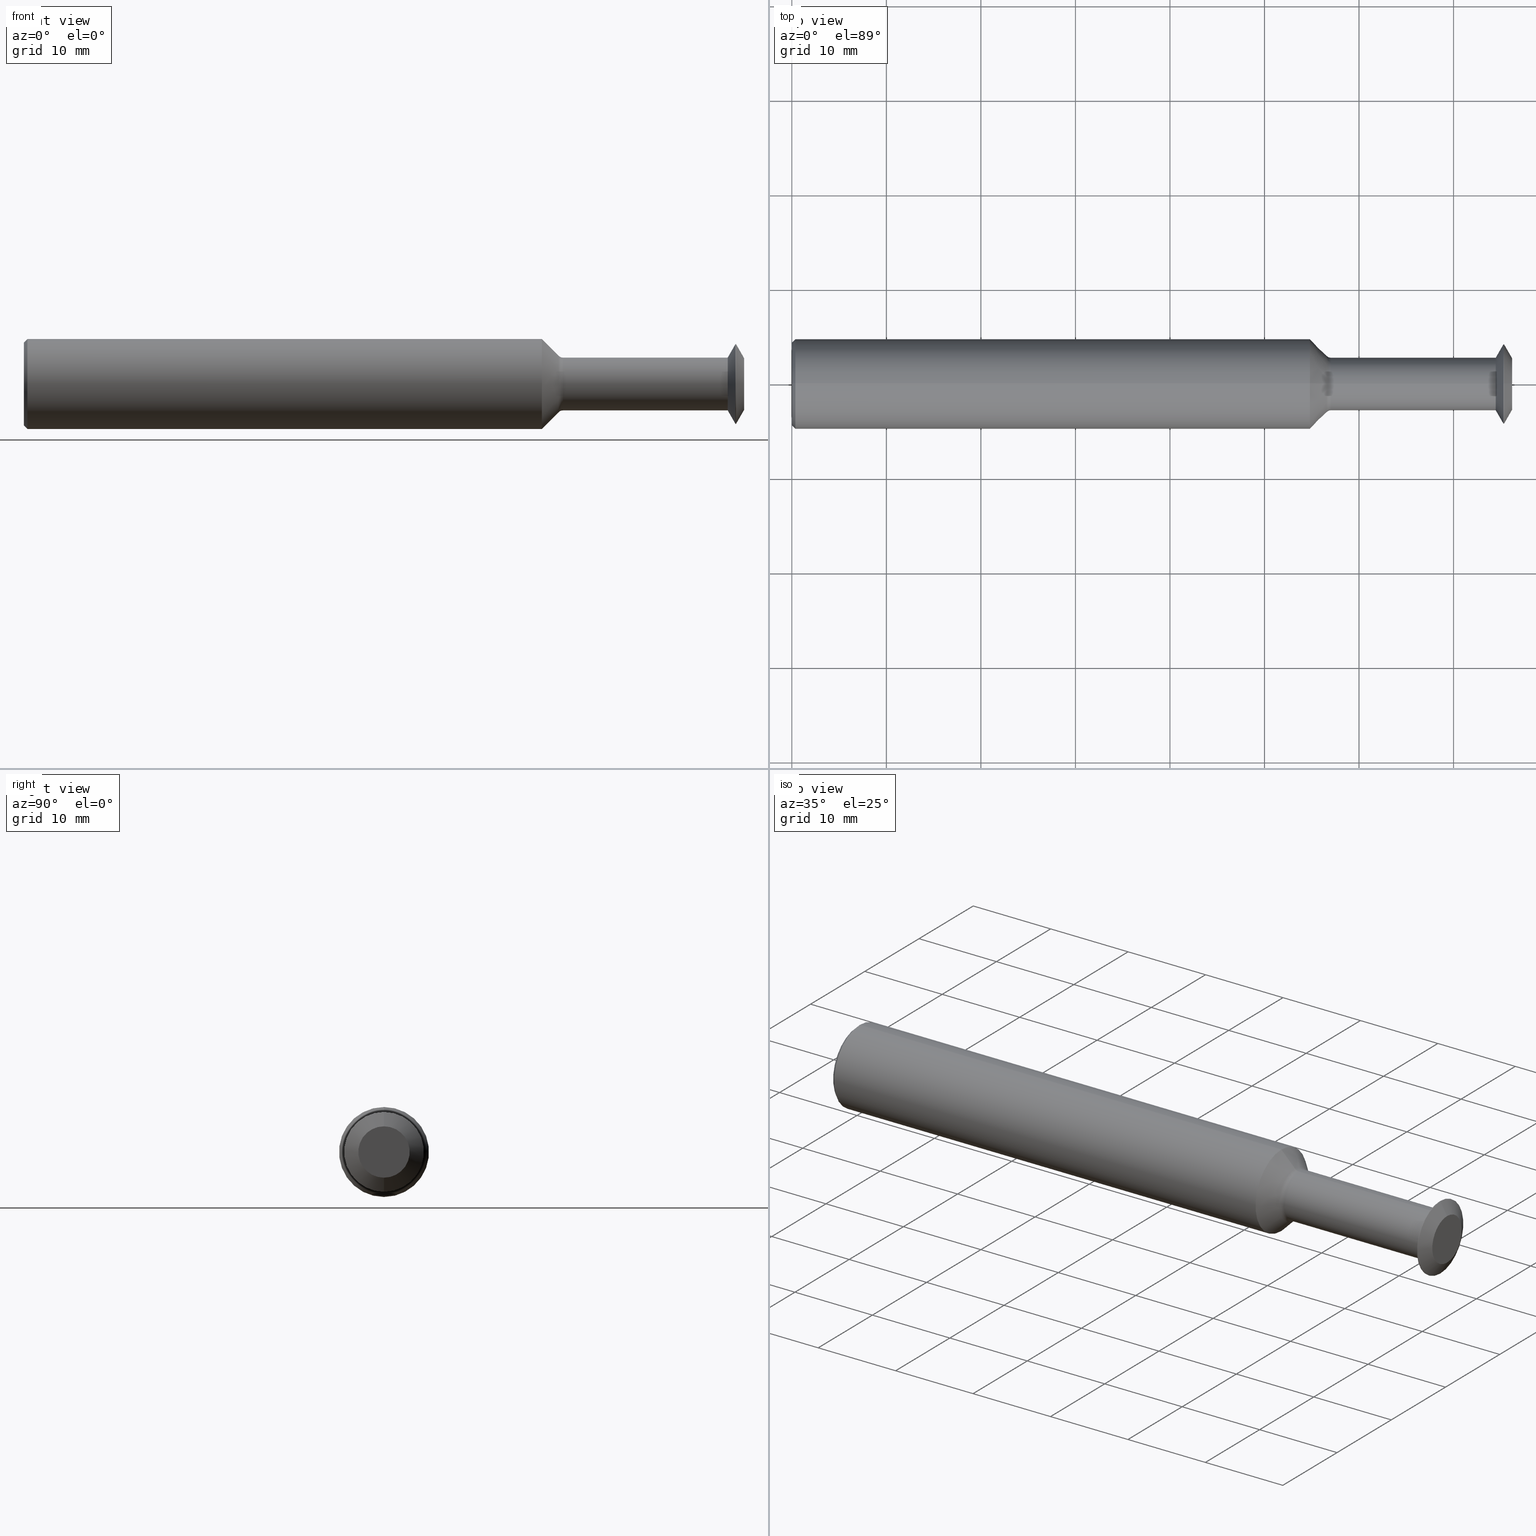
[diagram: canonical four-view strip — front | top / right | iso, engineering-drawing reading convention]
A machine part, canonical four-view strip (front | top / right | iso — engineering-drawing reading convention). The complete STEP part file that produces these views, byte-faithful:
ISO-10303-21;
HEADER;
FILE_DESCRIPTION (( 'STEP AP214' ),
    '1' );
FILE_NAME ('SPTM332.STEP',
    '2019-04-23T20:27:19',
    ( '' ),
    ( '' ),
    'SwSTEP 2.0',
    'SolidWorks 2018',
    '' );
FILE_SCHEMA (( 'AUTOMOTIVE_DESIGN' ));
ENDSEC;

DATA;
#1 = FACE_OUTER_BOUND ( 'NONE', #67, .T. ) ;
#2 = ORIENTED_EDGE ( 'NONE', *, *, #364, .F. ) ;
#3 = DIRECTION ( 'NONE',  ( 0.0000000000000000000, 0.0000000000000000000, 1.000000000000000000 ) ) ;
#4 = AXIS2_PLACEMENT_3D ( 'NONE', #200, #419, #3 ) ;
#5 = DIRECTION ( 'NONE',  ( 0.0000000000000000000, 0.0000000000000000000, 1.000000000000000000 ) ) ;
#6 = CARTESIAN_POINT ( 'NONE',  ( 3.000000000000000444, 0.0000000000000000000, 0.0000000000000000000 ) ) ;
#7 = PLANE ( 'NONE',  #227 ) ;
#8 = EDGE_CURVE ( 'NONE', #501, #144, #277, .T. ) ;
#9 = CIRCLE ( 'NONE', #284, 0.1173223304703358144 ) ;
#10 = ORIENTED_EDGE ( 'NONE', *, *, #130, .F. ) ;
#11 = ORIENTED_EDGE ( 'NONE', *, *, #330, .F. ) ;
#12 = LINE ( 'NONE', #387, #16 ) ;
#13 = ORIENTED_EDGE ( 'NONE', *, *, #108, .T. ) ;
#14 = UNCERTAINTY_MEASURE_WITH_UNIT (LENGTH_MEASURE( 1.000000000000000082E-05 ), #131, 'distance_accuracy_value', 'NONE');
#15 = CARTESIAN_POINT ( 'NONE',  ( 0.01499999999999953280, 0.0000000000000000000, 0.1873499999999999888 ) ) ;
#16 = VECTOR ( 'NONE', #339, 39.37007874015748143 ) ;
#17 = ORIENTED_EDGE ( 'NONE', *, *, #489, .T. ) ;
#18 = CARTESIAN_POINT ( 'NONE',  ( 0.0000000000000000000, 2.110678758330468070E-17, 0.1723500000000004195 ) ) ;
#19 = AXIS2_PLACEMENT_3D ( 'NONE', #308, #458, #301 ) ;
#20 = CARTESIAN_POINT ( 'NONE',  ( 0.0000000000000000000, 2.032913686584599974E-17, -0.1659999999999994813 ) ) ;
#21 = DIRECTION ( 'NONE',  ( 0.0000000000000000000, 0.0000000000000000000, 1.000000000000000000 ) ) ;
#22 = ORIENTED_EDGE ( 'NONE', *, *, #357, .F. ) ;
#23 = DIRECTION ( 'NONE',  ( -1.000000000000000000, -0.0000000000000000000, -0.0000000000000000000 ) ) ;
#24 = CIRCLE ( 'NONE', #211, 0.1659999999999994813 ) ;
#25 = ADVANCED_FACE ( 'NONE', ( #27 ), #196, .T. ) ;
#26 = DIRECTION ( 'NONE',  ( -1.000000000000000000, -0.0000000000000000000, -0.0000000000000000000 ) ) ;
#27 = FACE_OUTER_BOUND ( 'NONE', #369, .T. ) ;
#28 = CARTESIAN_POINT ( 'NONE',  ( 0.0000000000000000000, 0.0000000000000000000, 0.0000000000000000000 ) ) ;
#29 = UNCERTAINTY_MEASURE_WITH_UNIT (LENGTH_MEASURE( 1.000000000000000082E-05 ), #298, 'distance_accuracy_value', 'NONE');
#30 = ORIENTED_EDGE ( 'NONE', *, *, #489, .F. ) ;
#31 = DIRECTION ( 'NONE',  ( -1.000000000000000000, -0.0000000000000000000, -0.0000000000000000000 ) ) ;
#32 = FACE_OUTER_BOUND ( 'NONE', #381, .T. ) ;
#33 = CARTESIAN_POINT ( 'NONE',  ( 2.931505539846447128, 0.0000000000000000000, -0.1099999999999994732 ) ) ;
#34 = ORIENTED_EDGE ( 'NONE', *, *, #473, .F. ) ;
#35 = ORIENTED_EDGE ( 'NONE', *, *, #50, .T. ) ;
#36 = CYLINDRICAL_SURFACE ( 'NONE', #366, 0.1873499999999999888 ) ;
#37 = ORIENTED_EDGE ( 'NONE', *, *, #364, .T. ) ;
#38 = VECTOR ( 'NONE', #261, 39.37007874015748143 ) ;
#39 = EDGE_CURVE ( 'NONE', #354, #191, #420, .T. ) ;
#40 = ORIENTED_EDGE ( 'NONE', *, *, #462, .T. ) ;
#41 = TOROIDAL_SURFACE ( 'NONE', #19, 0.1349999999999994815, 0.02500000000000000486 ) ;
#42 = DIRECTION ( 'NONE',  ( 0.0000000000000000000, 0.0000000000000000000, 1.000000000000000000 ) ) ;
#43 = SURFACE_STYLE_FILL_AREA ( #244 ) ;
#44 = AXIS2_PLACEMENT_3D ( 'NONE', #228, #222, #418 ) ;
#45 = ORIENTED_EDGE ( 'NONE', *, *, #183, .F. ) ;
#46 = VERTEX_POINT ( 'NONE', #334 ) ;
#47 = EDGE_CURVE ( 'NONE', #426, #139, #82, .T. ) ;
#48 = DIRECTION ( 'NONE',  ( 0.0000000000000000000, 0.0000000000000000000, -1.000000000000000000 ) ) ;
#49 = PRODUCT_DEFINITION_SHAPE ( 'NONE', 'NONE',  #427 ) ;
#50 = EDGE_CURVE ( 'NONE', #201, #321, #278, .T. ) ;
#51 = VECTOR ( 'NONE', #23, 39.37007874015748143 ) ;
#52 = CIRCLE ( 'NONE', #343, 0.1873499999999999888 ) ;
#53 = ORIENTED_EDGE ( 'NONE', *, *, #108, .F. ) ;
#54 = AXIS2_PLACEMENT_3D ( 'NONE', #423, #109, #353 ) ;
#55 = CARTESIAN_POINT ( 'NONE',  ( 3.000000000000000444, 0.0000000000000000000, 0.0000000000000000000 ) ) ;
#56 = CIRCLE ( 'NONE', #448, 0.1069999999999994428 ) ;
#57 = EDGE_CURVE ( 'NONE', #321, #156, #102, .T. ) ;
#58 = VERTEX_POINT ( 'NONE', #439 ) ;
#59 = DIRECTION ( 'NONE',  ( 0.0000000000000000000, 0.0000000000000000000, -1.000000000000000000 ) ) ;
#60 = DIRECTION ( 'NONE',  ( -0.7071067811865483499, 0.0000000000000000000, 0.7071067811865465735 ) ) ;
#61 =( LENGTH_UNIT ( ) NAMED_UNIT ( * ) SI_UNIT ( $, .METRE. ) );
#62 = CARTESIAN_POINT ( 'NONE',  ( 0.0000000000000000000, 0.0000000000000000000, 0.0000000000000000000 ) ) ;
#63 = UNCERTAINTY_MEASURE_WITH_UNIT (LENGTH_MEASURE( 1.000000000000000082E-05 ), #280, 'distance_accuracy_value', 'NONE');
#64 = PRODUCT_DEFINITION_CONTEXT ( 'detailed design', #362, 'design' ) ;
#65 = DIRECTION ( 'NONE',  ( -0.0000000000000000000, 0.0000000000000000000, 1.000000000000000000 ) ) ;
#66 = CARTESIAN_POINT ( 'NONE',  ( 3.000000000000000444, 1.310372075087661178E-17, -0.1069999999999994428 ) ) ;
#67 = EDGE_LOOP ( 'NONE', ( #181, #13, #17, #166 ) ) ;
#68 = PRESENTATION_LAYER_ASSIGNMENT (  '', '', ( #77 ) ) ;
#69 = CONICAL_SURFACE ( 'NONE', #374, 0.1173223304703358144, 0.7853981633974470578 ) ;
#70 = DIRECTION ( 'NONE',  ( 0.0000000000000000000, 0.0000000000000000000, -1.000000000000000000 ) ) ;
#71 = ORIENTED_EDGE ( 'NONE', *, *, #50, .F. ) ;
#72 = CARTESIAN_POINT ( 'NONE',  ( 2.966141972616872735, 2.032913686584599974E-17, -0.1659999999999994813 ) ) ;
#73 = EDGE_CURVE ( 'NONE', #428, #46, #442, .T. ) ;
#74 = SURFACE_SIDE_STYLE ('',( #43 ) ) ;
#75 = CIRCLE ( 'NONE', #203, 0.1069999999999994428 ) ;
#76 = EDGE_LOOP ( 'NONE', ( #250, #376, #348, #11 ) ) ;
#77 = STYLED_ITEM ( 'NONE', ( #487 ), #388 ) ;
#78 = DIRECTION ( 'NONE',  ( 0.0000000000000000000, 0.0000000000000000000, 1.000000000000000000 ) ) ;
#79 = CARTESIAN_POINT ( 'NONE',  ( 2.227569642146536300, 0.0000000000000000000, 0.1173223304703358144 ) ) ;
#80 = FACE_OUTER_BOUND ( 'NONE', #105, .T. ) ;
#81 = DIRECTION ( 'NONE',  ( 0.0000000000000000000, 0.0000000000000000000, 1.000000000000000000 ) ) ;
#82 = LINE ( 'NONE', #358, #494 ) ;
#83 = CARTESIAN_POINT ( 'NONE',  ( 0.0000000000000000000, 0.0000000000000000000, 0.0000000000000000000 ) ) ;
#84 = DIRECTION ( 'NONE',  ( -1.000000000000000000, -0.0000000000000000000, -0.0000000000000000000 ) ) ;
#85 = ORIENTED_EDGE ( 'NONE', *, *, #187, .T. ) ;
#86 = DIRECTION ( 'NONE',  ( 0.4977310399126169682, 0.0000000000000000000, -0.8673314314075702969 ) ) ;
#87 = FACE_OUTER_BOUND ( 'NONE', #76, .T. ) ;
#88 = EDGE_CURVE ( 'NONE', #58, #341, #75, .T. ) ;
#89 = ORIENTED_EDGE ( 'NONE', *, *, #8, .F. ) ;
#90 = ORIENTED_EDGE ( 'NONE', *, *, #91, .T. ) ;
#91 = EDGE_CURVE ( 'NONE', #428, #426, #318, .T. ) ;
#92 = CARTESIAN_POINT ( 'NONE',  ( 2.963641972616872788, 0.0000000000000000000, -0.1659999999999994813 ) ) ;
#93 = DIRECTION ( 'NONE',  ( 0.0000000000000000000, 0.0000000000000000000, 1.000000000000000000 ) ) ;
#94 = EDGE_LOOP ( 'NONE', ( #141, #90, #495, #460 ) ) ;
#95 = ORIENTED_EDGE ( 'NONE', *, *, #403, .T. ) ;
#96 = CARTESIAN_POINT ( 'NONE',  ( 2.227569642146536300, 0.0000000000000000000, 0.0000000000000000000 ) ) ;
#97 = MECHANICAL_DESIGN_GEOMETRIC_PRESENTATION_REPRESENTATION (  '', ( #408 ), #286 ) ;
#98 = CARTESIAN_POINT ( 'NONE',  ( 0.0000000000000000000, 0.0000000000000000000, 0.0000000000000000000 ) ) ;
#99 = LINE ( 'NONE', #189, #170 ) ;
#100 = CIRCLE ( 'NONE', #279, 0.1659999999999994813 ) ;
#101 = DIRECTION ( 'NONE',  ( -1.000000000000000000, -0.0000000000000000000, -0.0000000000000000000 ) ) ;
#102 = LINE ( 'NONE', #18, #38 ) ;
#103 = LINE ( 'NONE', #129, #125 ) ;
#104 = CARTESIAN_POINT ( 'NONE',  ( 2.966141972616872735, 0.0000000000000000000, 0.0000000000000000000 ) ) ;
#105 = EDGE_LOOP ( 'NONE', ( #390, #485, #251, #34 ) ) ;
#106 = SURFACE_STYLE_USAGE ( .BOTH. , #147 ) ;
#107 = DIRECTION ( 'NONE',  ( 0.0000000000000000000, 0.0000000000000000000, 1.000000000000000000 ) ) ;
#108 = EDGE_CURVE ( 'NONE', #428, #180, #112, .T. ) ;
#109 = DIRECTION ( 'NONE',  ( 1.000000000000000000, 0.0000000000000000000, 0.0000000000000000000 ) ) ;
#110 =( LENGTH_UNIT ( ) NAMED_UNIT ( * ) SI_UNIT ( $, .METRE. ) );
#111 = DIRECTION ( 'NONE',  ( 0.0000000000000000000, -1.000000000000000000, 0.0000000000000000000 ) ) ;
#112 = CIRCLE ( 'NONE', #248, 0.02500000000000000486 ) ;
#113 = DIRECTION ( 'NONE',  ( -1.000000000000000000, -0.0000000000000000000, -0.0000000000000000000 ) ) ;
#114 = ORIENTED_EDGE ( 'NONE', *, *, #39, .T. ) ;
#115 = DIRECTION ( 'NONE',  ( -0.4977310399126227969, 1.062174661273168978E-16, -0.8673314314075668552 ) ) ;
#116 = CARTESIAN_POINT ( 'NONE',  ( 2.245247311676199953, 0.0000000000000000000, 0.1349999999999994815 ) ) ;
#117 = EDGE_LOOP ( 'NONE', ( #363, #327, #475, #160 ) ) ;
#118 = LINE ( 'NONE', #338, #51 ) ;
#119 = DIRECTION ( 'NONE',  ( 0.4977310399126169682, 1.062174661273173415E-16, 0.8673314314075702969 ) ) ;
#120 = EDGE_CURVE ( 'NONE', #224, #501, #464, .T. ) ;
#121 = ORIENTED_EDGE ( 'NONE', *, *, #183, .T. ) ;
#122 = DIRECTION ( 'NONE',  ( -1.000000000000000000, -0.0000000000000000000, -0.0000000000000000000 ) ) ;
#123 = CARTESIAN_POINT ( 'NONE',  ( 2.966141972616872735, 0.0000000000000000000, 0.0000000000000000000 ) ) ;
#124 = ORIENTED_EDGE ( 'NONE', *, *, #39, .F. ) ;
#125 = VECTOR ( 'NONE', #380, 39.37007874015748143 ) ;
#126 = DIRECTION ( 'NONE',  ( -1.000000000000000000, -0.0000000000000000000, -0.0000000000000000000 ) ) ;
#127 = ORIENTED_EDGE ( 'NONE', *, *, #330, .T. ) ;
#128 = DIRECTION ( 'NONE',  ( 0.0000000000000000000, 0.0000000000000000000, 1.000000000000000000 ) ) ;
#129 = CARTESIAN_POINT ( 'NONE',  ( 0.0000000000000000000, 0.0000000000000000000, -0.1723500000000004195 ) ) ;
#130 = EDGE_CURVE ( 'NONE', #191, #144, #351, .T. ) ;
#131 =( CONVERSION_BASED_UNIT ( 'INCH', #197 ) LENGTH_UNIT ( ) NAMED_UNIT ( #481 ) );
#132 = VERTEX_POINT ( 'NONE', #172 ) ;
#133 = FACE_OUTER_BOUND ( 'NONE', #258, .T. ) ;
#134 = DIRECTION ( 'NONE',  ( 0.0000000000000000000, 0.0000000000000000000, 1.000000000000000000 ) ) ;
#135 = ORIENTED_EDGE ( 'NONE', *, *, #210, .T. ) ;
#136 = DIRECTION ( 'NONE',  ( -1.000000000000000000, -0.0000000000000000000, -0.0000000000000000000 ) ) ;
#137 = DIRECTION ( 'NONE',  ( -1.000000000000000000, -0.0000000000000000000, -0.0000000000000000000 ) ) ;
#138 = AXIS2_PLACEMENT_3D ( 'NONE', #83, #186, #480 ) ;
#139 = VERTEX_POINT ( 'NONE', #217 ) ;
#140 = EDGE_CURVE ( 'NONE', #321, #201, #449, .T. ) ;
#141 = ORIENTED_EDGE ( 'NONE', *, *, #73, .F. ) ;
#142 = DIRECTION ( 'NONE',  ( 0.0000000000000000000, 0.0000000000000000000, -1.000000000000000000 ) ) ;
#143 = CARTESIAN_POINT ( 'NONE',  ( 0.0000000000000000000, 0.0000000000000000000, 0.0000000000000000000 ) ) ;
#144 = VERTEX_POINT ( 'NONE', #410 ) ;
#145 = FILL_AREA_STYLE ('',( #285 ) ) ;
#146 = DIRECTION ( 'NONE',  ( -1.000000000000000000, -0.0000000000000000000, -0.0000000000000000000 ) ) ;
#147 = SURFACE_SIDE_STYLE ('',( #175 ) ) ;
#148 = DIRECTION ( 'NONE',  ( 0.0000000000000000000, 0.0000000000000000000, 1.000000000000000000 ) ) ;
#149 = ORIENTED_EDGE ( 'NONE', *, *, #462, .F. ) ;
#150 = DIRECTION ( 'NONE',  ( 0.0000000000000000000, 0.0000000000000000000, 1.000000000000000000 ) ) ;
#151 = EDGE_LOOP ( 'NONE', ( #209, #45, #431, #283 ) ) ;
#152 = ADVANCED_FACE ( 'NONE', ( #483 ), #407, .T. ) ;
#153 = CYLINDRICAL_SURFACE ( 'NONE', #4, 0.1659999999999994813 ) ;
#154 = EDGE_CURVE ( 'NONE', #341, #354, #474, .T. ) ;
#155 = ADVANCED_FACE ( 'NONE', ( #455 ), #467, .T. ) ;
#156 = VERTEX_POINT ( 'NONE', #15 ) ;
#157 = DIRECTION ( 'NONE',  ( 0.0000000000000000000, 0.0000000000000000000, 1.000000000000000000 ) ) ;
#158 = ADVANCED_FACE ( 'NONE', ( #356 ), #359, .F. ) ;
#159 = DIRECTION ( 'NONE',  ( 0.0000000000000000000, 0.0000000000000000000, -1.000000000000000000 ) ) ;
#160 = ORIENTED_EDGE ( 'NONE', *, *, #154, .F. ) ;
#161 = AXIS2_PLACEMENT_3D ( 'NONE', #276, #243, #266 ) ;
#162 = CARTESIAN_POINT ( 'NONE',  ( 2.245247311676199953, 0.0000000000000000000, 0.0000000000000000000 ) ) ;
#163 = CARTESIAN_POINT ( 'NONE',  ( 2.963641972616872788, 0.0000000000000000000, 0.1659999999999994813 ) ) ;
#164 = AXIS2_PLACEMENT_3D ( 'NONE', #441, #229, #42 ) ;
#165 = EDGE_LOOP ( 'NONE', ( #35, #396 ) ) ;
#166 = ORIENTED_EDGE ( 'NONE', *, *, #210, .F. ) ;
#167 = CARTESIAN_POINT ( 'NONE',  ( 2.245247311676199953, 1.653273178848920396E-17, -0.1349999999999994815 ) ) ;
#168 = ADVANCED_FACE ( 'NONE', ( #461 ), #496, .T. ) ;
#169 = EDGE_CURVE ( 'NONE', #241, #180, #377, .T. ) ;
#170 = VECTOR ( 'NONE', #193, 39.37007874015748143 ) ;
#171 =( NAMED_UNIT ( * ) PLANE_ANGLE_UNIT ( ) SI_UNIT ( $, .RADIAN. ) );
#172 = CARTESIAN_POINT ( 'NONE',  ( 0.01499999999999953280, 2.294375778202566330E-17, -0.1873499999999999888 ) ) ;
#173 = ADVANCED_FACE ( 'NONE', ( #443 ), #204, .T. ) ;
#174 =( LENGTH_UNIT ( ) NAMED_UNIT ( * ) SI_UNIT ( $, .METRE. ) );
#175 = SURFACE_STYLE_FILL_AREA ( #145 ) ;
#176 = AXIS2_PLACEMENT_3D ( 'NONE', #162, #322, #178 ) ;
#177 = AXIS2_PLACEMENT_3D ( 'NONE', #143, #421, #59 ) ;
#178 = DIRECTION ( 'NONE',  ( 0.0000000000000000000, 0.0000000000000000000, 1.000000000000000000 ) ) ;
#179 = COLOUR_RGB ( '',0.5019607843137254832, 0.5019607843137254832, 0.5019607843137254832 ) ;
#180 = VERTEX_POINT ( 'NONE', #294 ) ;
#181 = ORIENTED_EDGE ( 'NONE', *, *, #91, .F. ) ;
#182 = APPLICATION_PROTOCOL_DEFINITION ( 'draft international standard', 'automotive_design', 1998, #362 ) ;
#183 = EDGE_CURVE ( 'NONE', #501, #224, #416, .T. ) ;
#184 = CARTESIAN_POINT ( 'NONE',  ( 2.245247311676199953, 0.0000000000000000000, 0.0000000000000000000 ) ) ;
#185 = DIRECTION ( 'NONE',  ( -1.000000000000000000, -0.0000000000000000000, -0.0000000000000000000 ) ) ;
#186 = DIRECTION ( 'NONE',  ( -1.000000000000000000, -0.0000000000000000000, -0.0000000000000000000 ) ) ;
#187 = EDGE_CURVE ( 'NONE', #46, #139, #288, .T. ) ;
#188 = AXIS2_PLACEMENT_3D ( 'NONE', #405, #136, #128 ) ;
#189 = CARTESIAN_POINT ( 'NONE',  ( 0.0000000000000000000, 1.347111479062082155E-17, -0.1099999999999994732 ) ) ;
#190 = CARTESIAN_POINT ( 'NONE',  ( 0.0000000000000000000, 0.0000000000000000000, 0.0000000000000000000 ) ) ;
#191 = VERTEX_POINT ( 'NONE', #163 ) ;
#192 = DIRECTION ( 'NONE',  ( 0.0000000000000000000, 0.0000000000000000000, 1.000000000000000000 ) ) ;
#193 = DIRECTION ( 'NONE',  ( -1.000000000000000000, -0.0000000000000000000, -0.0000000000000000000 ) ) ;
#194 = ADVANCED_FACE ( 'NONE', ( #432 ), #478, .T. ) ;
#195 = DIRECTION ( 'NONE',  ( 0.0000000000000000000, 0.0000000000000000000, 1.000000000000000000 ) ) ;
#196 = CYLINDRICAL_SURFACE ( 'NONE', #188, 0.1873499999999999888 ) ;
#197 = LENGTH_MEASURE_WITH_UNIT ( LENGTH_MEASURE( 0.02539999999999999897 ), #110 );
#198 = CONICAL_SURFACE ( 'NONE', #177, 0.1723500000000004195, 0.7853981633974492782 ) ;
#199 = AXIS2_PLACEMENT_3D ( 'NONE', #345, #231, #70 ) ;
#200 = CARTESIAN_POINT ( 'NONE',  ( 0.0000000000000000000, 0.0000000000000000000, 0.0000000000000000000 ) ) ;
#201 = VERTEX_POINT ( 'NONE', #450 ) ;
#202 = DIRECTION ( 'NONE',  ( -1.000000000000000000, -0.0000000000000000000, -0.0000000000000000000 ) ) ;
#203 = AXIS2_PLACEMENT_3D ( 'NONE', #55, #296, #93 ) ;
#204 = CONICAL_SURFACE ( 'NONE', #452, 0.1659999999999994813, 1.049815545074583856 ) ;
#205 = ORIENTED_EDGE ( 'NONE', *, *, #247, .T. ) ;
#206 = SURFACE_STYLE_USAGE ( .BOTH. , #74 ) ;
#207 = ADVANCED_FACE ( 'NONE', ( #80 ), #281, .T. ) ;
#208 = LINE ( 'NONE', #268, #342 ) ;
#209 = ORIENTED_EDGE ( 'NONE', *, *, #239, .F. ) ;
#210 = EDGE_CURVE ( 'NONE', #426, #241, #491, .T. ) ;
#211 = AXIS2_PLACEMENT_3D ( 'NONE', #123, #299, #150 ) ;
#212 = AXIS2_PLACEMENT_3D ( 'NONE', #116, #111, #333 ) ;
#213 = ORIENTED_EDGE ( 'NONE', *, *, #218, .F. ) ;
#214 = LENGTH_MEASURE_WITH_UNIT ( LENGTH_MEASURE( 0.02539999999999999897 ), #61 );
#215 = AXIS2_PLACEMENT_3D ( 'NONE', #96, #137, #134 ) ;
#216 = MANIFOLD_SOLID_BREP ( '3E6DE0A6-F0A7-4dcf-9B00-E4F1BCAEEE2A-GAAFaceID9', #367 ) ;
#217 = CARTESIAN_POINT ( 'NONE',  ( 2.157541972616871639, 0.0000000000000000000, 0.1873499999999999888 ) ) ;
#218 = EDGE_CURVE ( 'NONE', #224, #241, #12, .T. ) ;
#219 = CARTESIAN_POINT ( 'NONE',  ( 2.963641972616872788, 0.0000000000000000000, 0.0000000000000000000 ) ) ;
#220 = VECTOR ( 'NONE', #349, 39.37007874015748143 ) ;
#221 = AXIS2_PLACEMENT_3D ( 'NONE', #386, #146, #313 ) ;
#222 = DIRECTION ( 'NONE',  ( 0.0000000000000000000, 0.0000000000000000000, 1.000000000000000000 ) ) ;
#223 = DIRECTION ( 'NONE',  ( -1.000000000000000000, -0.0000000000000000000, -0.0000000000000000000 ) ) ;
#224 = VERTEX_POINT ( 'NONE', #454 ) ;
#225 = VECTOR ( 'NONE', #119, 39.37007874015748143 ) ;
#226 = ORIENTED_EDGE ( 'NONE', *, *, #73, .T. ) ;
#227 = AXIS2_PLACEMENT_3D ( 'NONE', #453, #312, #65 ) ;
#228 = CARTESIAN_POINT ( 'NONE',  ( 0.0000000000000000000, 0.0000000000000000000, 0.0000000000000000000 ) ) ;
#229 = DIRECTION ( 'NONE',  ( -1.000000000000000000, -0.0000000000000000000, -0.0000000000000000000 ) ) ;
#230 = PRESENTATION_STYLE_ASSIGNMENT (( #206 ) ) ;
#231 = DIRECTION ( 'NONE',  ( 1.000000000000000000, 0.0000000000000000000, 0.0000000000000000000 ) ) ;
#232 =( NAMED_UNIT ( * ) PLANE_ANGLE_UNIT ( ) SI_UNIT ( $, .RADIAN. ) );
#233 = DIRECTION ( 'NONE',  ( 0.0000000000000000000, 0.0000000000000000000, -1.000000000000000000 ) ) ;
#234 = APPLICATION_CONTEXT ( 'automotive_design' ) ;
#235 =( NAMED_UNIT ( * ) SI_UNIT ( $, .STERADIAN. ) SOLID_ANGLE_UNIT ( ) );
#236 = ADVANCED_FACE ( 'NONE', ( #32 ), #69, .T. ) ;
#237 = DIRECTION ( 'NONE',  ( -1.000000000000000000, -0.0000000000000000000, -0.0000000000000000000 ) ) ;
#238 = ORIENTED_EDGE ( 'NONE', *, *, #88, .F. ) ;
#239 = EDGE_CURVE ( 'NONE', #224, #191, #411, .T. ) ;
#240 = CARTESIAN_POINT ( 'NONE',  ( 2.963641972616872788, 0.0000000000000000000, 0.0000000000000000000 ) ) ;
#241 = VERTEX_POINT ( 'NONE', #245 ) ;
#242 = DIRECTION ( 'NONE',  ( -1.000000000000000000, -0.0000000000000000000, -0.0000000000000000000 ) ) ;
#243 = DIRECTION ( 'NONE',  ( 1.000000000000000000, 0.0000000000000000000, 0.0000000000000000000 ) ) ;
#244 = FILL_AREA_STYLE ('',( #347 ) ) ;
#245 = CARTESIAN_POINT ( 'NONE',  ( 2.245247311676199953, 0.0000000000000000000, 0.1099999999999994732 ) ) ;
#246 = AXIS2_PLACEMENT_3D ( 'NONE', #28, #389, #159 ) ;
#247 = EDGE_CURVE ( 'NONE', #156, #132, #329, .T. ) ;
#248 = AXIS2_PLACEMENT_3D ( 'NONE', #167, #371, #373 ) ;
#249 = FACE_OUTER_BOUND ( 'NONE', #372, .T. ) ;
#250 = ORIENTED_EDGE ( 'NONE', *, *, #140, .F. ) ;
#251 = ORIENTED_EDGE ( 'NONE', *, *, #154, .T. ) ;
#252 = VECTOR ( 'NONE', #264, 39.37007874015748854 ) ;
#253 = EDGE_CURVE ( 'NONE', #139, #156, #118, .T. ) ;
#254 = ADVANCED_FACE ( 'NONE', ( #249 ), #198, .T. ) ;
#255 = EDGE_LOOP ( 'NONE', ( #344, #121, #355, #30 ) ) ;
#256 = EDGE_LOOP ( 'NONE', ( #409, #40, #10, #124 ) ) ;
#257 = DIRECTION ( 'NONE',  ( -1.000000000000000000, -0.0000000000000000000, -0.0000000000000000000 ) ) ;
#258 = EDGE_LOOP ( 'NONE', ( #149, #335, #114, #22 ) ) ;
#259 = CARTESIAN_POINT ( 'NONE',  ( 3.000000000000000444, 0.0000000000000000000, 0.1069999999999994428 ) ) ;
#260 = ADVANCED_FACE ( 'NONE', ( #446 ), #36, .T. ) ;
#261 = DIRECTION ( 'NONE',  ( 0.7071067811865467956, 8.659560562354943952E-17, 0.7071067811865483499 ) ) ;
#262 = AXIS2_PLACEMENT_3D ( 'NONE', #336, #435, #157 ) ;
#263 = DIRECTION ( 'NONE',  ( 0.0000000000000000000, 0.0000000000000000000, 1.000000000000000000 ) ) ;
#264 = DIRECTION ( 'NONE',  ( -0.7071067811865483499, 8.659560562354922997E-17, -0.7071067811865465735 ) ) ;
#265 = EDGE_LOOP ( 'NONE', ( #53, #385, #135, #406 ) ) ;
#266 = DIRECTION ( 'NONE',  ( 0.0000000000000000000, 0.0000000000000000000, -1.000000000000000000 ) ) ;
#267 = DIRECTION ( 'NONE',  ( -0.4977310399126227969, 0.0000000000000000000, 0.8673314314075668552 ) ) ;
#268 = CARTESIAN_POINT ( 'NONE',  ( 0.0000000000000000000, 2.294375778202566330E-17, -0.1873499999999999888 ) ) ;
#269 = DIRECTION ( 'NONE',  ( 0.0000000000000000000, 0.0000000000000000000, 1.000000000000000000 ) ) ;
#270 = AXIS2_PLACEMENT_3D ( 'NONE', #62, #223, #337 ) ;
#271 = VECTOR ( 'NONE', #444, 39.37007874015748143 ) ;
#272 = ORIENTED_EDGE ( 'NONE', *, *, #497, .T. ) ;
#273 = ORIENTED_EDGE ( 'NONE', *, *, #169, .F. ) ;
#274 = AXIS2_PLACEMENT_3D ( 'NONE', #413, #378, #233 ) ;
#275 = CARTESIAN_POINT ( 'NONE',  ( 0.0000000000000000000, 0.0000000000000000000, 0.0000000000000000000 ) ) ;
#276 = CARTESIAN_POINT ( 'NONE',  ( 2.963641972616872788, 0.0000000000000000000, 0.0000000000000000000 ) ) ;
#277 = LINE ( 'NONE', #92, #472 ) ;
#278 = CIRCLE ( 'NONE', #138, 0.1723500000000004195 ) ;
#279 = AXIS2_PLACEMENT_3D ( 'NONE', #104, #237, #375 ) ;
#280 =( CONVERSION_BASED_UNIT ( 'INCH', #214 ) LENGTH_UNIT ( ) NAMED_UNIT ( #295 ) );
#281 = CONICAL_SURFACE ( 'NONE', #262, 0.1069999999999994428, 1.049815545074576972 ) ;
#282 = CARTESIAN_POINT ( 'NONE',  ( 2.227569642146536300, 0.0000000000000000000, 0.0000000000000000000 ) ) ;
#283 = ORIENTED_EDGE ( 'NONE', *, *, #357, .T. ) ;
#284 = AXIS2_PLACEMENT_3D ( 'NONE', #340, #490, #269 ) ;
#285 = FILL_AREA_STYLE_COLOUR ( '', #302 ) ;
#286 =( GEOMETRIC_REPRESENTATION_CONTEXT ( 3 ) GLOBAL_UNCERTAINTY_ASSIGNED_CONTEXT ( ( #63 ) ) GLOBAL_UNIT_ASSIGNED_CONTEXT ( ( #280, #352, #235 ) ) REPRESENTATION_CONTEXT ( 'NONE', 'WORKASPACE' ) );
#287 = ORIENTED_EDGE ( 'NONE', *, *, #130, .T. ) ;
#288 = CIRCLE ( 'NONE', #293, 0.1873499999999999888 ) ;
#289 =( NAMED_UNIT ( * ) SI_UNIT ( $, .STERADIAN. ) SOLID_ANGLE_UNIT ( ) );
#290 = ORIENTED_EDGE ( 'NONE', *, *, #239, .T. ) ;
#291 = LINE ( 'NONE', #66, #393 ) ;
#292 = CARTESIAN_POINT ( 'NONE',  ( 3.000000000000000444, 0.0000000000000000000, 0.0000000000000000000 ) ) ;
#293 = AXIS2_PLACEMENT_3D ( 'NONE', #471, #242, #107 ) ;
#294 = CARTESIAN_POINT ( 'NONE',  ( 2.245247311676199953, 1.347111479062082155E-17, -0.1099999999999994732 ) ) ;
#295 = DIMENSIONAL_EXPONENTS ( 1.000000000000000000, 0.0000000000000000000, 0.0000000000000000000, 0.0000000000000000000, 0.0000000000000000000, 0.0000000000000000000, 0.0000000000000000000 ) ;
#296 = DIRECTION ( 'NONE',  ( -1.000000000000000000, -0.0000000000000000000, -0.0000000000000000000 ) ) ;
#297 = CARTESIAN_POINT ( 'NONE',  ( 3.000000000000000444, 0.0000000000000000000, 0.1069999999999994428 ) ) ;
#298 =( CONVERSION_BASED_UNIT ( 'INCH', #361 ) LENGTH_UNIT ( ) NAMED_UNIT ( #360 ) );
#299 = DIRECTION ( 'NONE',  ( -1.000000000000000000, -0.0000000000000000000, -0.0000000000000000000 ) ) ;
#300 = EDGE_LOOP ( 'NONE', ( #37, #272, #325, #397 ) ) ;
#301 = DIRECTION ( 'NONE',  ( 0.0000000000000000000, 0.0000000000000000000, 1.000000000000000000 ) ) ;
#302 = COLOUR_RGB ( '',0.5019607843137254832, 0.5019607843137254832, 0.5019607843137254832 ) ;
#303 = EDGE_LOOP ( 'NONE', ( #392, #238 ) ) ;
#304 = PLANE ( 'NONE',  #246 ) ;
#305 = FACE_OUTER_BOUND ( 'NONE', #94, .T. ) ;
#306 = CONICAL_SURFACE ( 'NONE', #402, 0.1173223304703358144, 0.7853981633974470578 ) ;
#307 = CARTESIAN_POINT ( 'NONE',  ( 2.157541972616871639, 0.0000000000000000000, 0.0000000000000000000 ) ) ;
#308 = CARTESIAN_POINT ( 'NONE',  ( 2.245247311676199953, 0.0000000000000000000, 0.0000000000000000000 ) ) ;
#309 = AXIS2_PLACEMENT_3D ( 'NONE', #190, #122, #148 ) ;
#310 = ADVANCED_FACE ( 'NONE', ( #133 ), #153, .T. ) ;
#311 = ADVANCED_FACE ( 'NONE', ( #422 ), #320, .T. ) ;
#312 = DIRECTION ( 'NONE',  ( -1.000000000000000000, 0.0000000000000000000, -0.0000000000000000000 ) ) ;
#313 = DIRECTION ( 'NONE',  ( 0.0000000000000000000, 0.0000000000000000000, 1.000000000000000000 ) ) ;
#314 = CIRCLE ( 'NONE', #176, 0.1099999999999994732 ) ;
#315 = CARTESIAN_POINT ( 'NONE',  ( 2.227569642146536300, 0.0000000000000000000, 0.0000000000000000000 ) ) ;
#316 = FACE_OUTER_BOUND ( 'NONE', #303, .T. ) ;
#317 = APPLICATION_PROTOCOL_DEFINITION ( 'draft international standard', 'automotive_design', 1998, #234 ) ;
#318 = CIRCLE ( 'NONE', #215, 0.1173223304703358144 ) ;
#319 = VERTEX_POINT ( 'NONE', #72 ) ;
#320 = CONICAL_SURFACE ( 'NONE', #161, 0.1659999999999994813, 1.049815545074583856 ) ;
#321 = VERTEX_POINT ( 'NONE', #456 ) ;
#322 = DIRECTION ( 'NONE',  ( -1.000000000000000000, -0.0000000000000000000, -0.0000000000000000000 ) ) ;
#323 = AXIS2_PLACEMENT_3D ( 'NONE', #240, #26, #195 ) ;
#324 = CARTESIAN_POINT ( 'NONE',  ( 0.0000000000000000000, 0.0000000000000000000, 0.1659999999999994813 ) ) ;
#325 = ORIENTED_EDGE ( 'NONE', *, *, #476, .T. ) ;
#326 = DIRECTION ( 'NONE',  ( 0.0000000000000000000, 0.0000000000000000000, 1.000000000000000000 ) ) ;
#327 = ORIENTED_EDGE ( 'NONE', *, *, #391, .T. ) ;
#328 = ORIENTED_EDGE ( 'NONE', *, *, #120, .F. ) ;
#329 = CIRCLE ( 'NONE', #274, 0.1873499999999999888 ) ;
#330 = EDGE_CURVE ( 'NONE', #201, #132, #103, .T. ) ;
#331 = ORIENTED_EDGE ( 'NONE', *, *, #57, .F. ) ;
#332 = AXIS2_PLACEMENT_3D ( 'NONE', #98, #185, #48 ) ;
#333 = DIRECTION ( 'NONE',  ( 0.0000000000000000000, 0.0000000000000000000, -1.000000000000000000 ) ) ;
#334 = CARTESIAN_POINT ( 'NONE',  ( 2.157541972616871639, 2.294375778202565714E-17, -0.1873499999999999888 ) ) ;
#335 = ORIENTED_EDGE ( 'NONE', *, *, #473, .T. ) ;
#336 = CARTESIAN_POINT ( 'NONE',  ( 3.000000000000000444, 0.0000000000000000000, 0.0000000000000000000 ) ) ;
#337 = DIRECTION ( 'NONE',  ( 0.0000000000000000000, 0.0000000000000000000, 1.000000000000000000 ) ) ;
#338 = CARTESIAN_POINT ( 'NONE',  ( 0.0000000000000000000, 0.0000000000000000000, 0.1873499999999999888 ) ) ;
#339 = DIRECTION ( 'NONE',  ( -1.000000000000000000, -0.0000000000000000000, -0.0000000000000000000 ) ) ;
#340 = CARTESIAN_POINT ( 'NONE',  ( 2.227569642146536300, 0.0000000000000000000, 0.0000000000000000000 ) ) ;
#341 = VERTEX_POINT ( 'NONE', #297 ) ;
#342 = VECTOR ( 'NONE', #434, 39.37007874015748143 ) ;
#343 = AXIS2_PLACEMENT_3D ( 'NONE', #307, #31, #498 ) ;
#344 = ORIENTED_EDGE ( 'NONE', *, *, #403, .F. ) ;
#345 = CARTESIAN_POINT ( 'NONE',  ( 0.0000000000000000000, 0.0000000000000000000, 0.0000000000000000000 ) ) ;
#346 = VECTOR ( 'NONE', #267, 39.37007874015748143 ) ;
#347 = FILL_AREA_STYLE_COLOUR ( '', #179 ) ;
#348 = ORIENTED_EDGE ( 'NONE', *, *, #476, .F. ) ;
#349 = DIRECTION ( 'NONE',  ( -1.000000000000000000, -0.0000000000000000000, -0.0000000000000000000 ) ) ;
#350 = AXIS2_PLACEMENT_3D ( 'NONE', #469, #126, #492 ) ;
#351 = CIRCLE ( 'NONE', #379, 0.1659999999999994813 ) ;
#352 =( NAMED_UNIT ( * ) PLANE_ANGLE_UNIT ( ) SI_UNIT ( $, .RADIAN. ) );
#353 = DIRECTION ( 'NONE',  ( 0.0000000000000000000, 0.0000000000000000000, -1.000000000000000000 ) ) ;
#354 = VERTEX_POINT ( 'NONE', #425 ) ;
#355 = ORIENTED_EDGE ( 'NONE', *, *, #218, .T. ) ;
#356 = FACE_OUTER_BOUND ( 'NONE', #265, .T. ) ;
#357 = EDGE_CURVE ( 'NONE', #144, #191, #412, .T. ) ;
#358 = CARTESIAN_POINT ( 'NONE',  ( 2.227569642146536300, 0.0000000000000000000, 0.1173223304703358144 ) ) ;
#359 = TOROIDAL_SURFACE ( 'NONE', #400, 0.1349999999999994815, 0.02500000000000000486 ) ;
#360 = DIMENSIONAL_EXPONENTS ( 1.000000000000000000, 0.0000000000000000000, 0.0000000000000000000, 0.0000000000000000000, 0.0000000000000000000, 0.0000000000000000000, 0.0000000000000000000 ) ;
#361 = LENGTH_MEASURE_WITH_UNIT ( LENGTH_MEASURE( 0.02539999999999999897 ), #174 );
#362 = APPLICATION_CONTEXT ( 'automotive_design' ) ;
#363 = ORIENTED_EDGE ( 'NONE', *, *, #440, .T. ) ;
#364 = EDGE_CURVE ( 'NONE', #139, #46, #52, .T. ) ;
#365 = ORIENTED_EDGE ( 'NONE', *, *, #247, .F. ) ;
#366 = AXIS2_PLACEMENT_3D ( 'NONE', #275, #382, #5 ) ;
#367 = CLOSED_SHELL ( 'NONE', ( #398, #260, #236, #370, #194, #173, #152, #155, #438, #207, #310, #311, #168, #158, #459, #25, #482, #254 ) ) ;
#368 = CARTESIAN_POINT ( 'NONE',  ( 2.963641972616872788, 0.0000000000000000000, 0.0000000000000000000 ) ) ;
#369 = EDGE_LOOP ( 'NONE', ( #414, #85, #404, #205 ) ) ;
#370 = ADVANCED_FACE ( 'NONE', ( #1 ), #41, .F. ) ;
#371 = DIRECTION ( 'NONE',  ( -0.0000000000000000000, 1.000000000000000000, 1.224646799147353207E-16 ) ) ;
#372 = EDGE_LOOP ( 'NONE', ( #331, #71, #127, #365 ) ) ;
#373 = DIRECTION ( 'NONE',  ( 0.0000000000000000000, -1.224646799147353454E-16, 1.000000000000000000 ) ) ;
#374 = AXIS2_PLACEMENT_3D ( 'NONE', #315, #84, #78 ) ;
#375 = DIRECTION ( 'NONE',  ( 0.0000000000000000000, 0.0000000000000000000, 1.000000000000000000 ) ) ;
#376 = ORIENTED_EDGE ( 'NONE', *, *, #57, .T. ) ;
#377 = CIRCLE ( 'NONE', #350, 0.1099999999999994732 ) ;
#378 = DIRECTION ( 'NONE',  ( 1.000000000000000000, 0.0000000000000000000, 0.0000000000000000000 ) ) ;
#379 = AXIS2_PLACEMENT_3D ( 'NONE', #219, #257, #263 ) ;
#380 = DIRECTION ( 'NONE',  ( 0.7071067811865467956, 0.0000000000000000000, -0.7071067811865483499 ) ) ;
#381 = EDGE_LOOP ( 'NONE', ( #447, #226, #2, #399 ) ) ;
#382 = DIRECTION ( 'NONE',  ( -1.000000000000000000, -0.0000000000000000000, -0.0000000000000000000 ) ) ;
#383 =( GEOMETRIC_REPRESENTATION_CONTEXT ( 3 ) GLOBAL_UNCERTAINTY_ASSIGNED_CONTEXT ( ( #29 ) ) GLOBAL_UNIT_ASSIGNED_CONTEXT ( ( #298, #171, #289 ) ) REPRESENTATION_CONTEXT ( 'NONE', 'WORKASPACE' ) );
#384 = AXIS2_PLACEMENT_3D ( 'NONE', #500, #202, #81 ) ;
#385 = ORIENTED_EDGE ( 'NONE', *, *, #445, .F. ) ;
#386 = CARTESIAN_POINT ( 'NONE',  ( 2.931505539846447128, 0.0000000000000000000, 0.0000000000000000000 ) ) ;
#387 = CARTESIAN_POINT ( 'NONE',  ( 0.0000000000000000000, 0.0000000000000000000, 0.1099999999999994732 ) ) ;
#388 = ADVANCED_BREP_SHAPE_REPRESENTATION ( 'SPTM332', ( #216, #44 ), #383 ) ;
#389 = DIRECTION ( 'NONE',  ( 1.000000000000000000, 0.0000000000000000000, 0.0000000000000000000 ) ) ;
#390 = ORIENTED_EDGE ( 'NONE', *, *, #391, .F. ) ;
#391 = EDGE_CURVE ( 'NONE', #58, #319, #291, .T. ) ;
#392 = ORIENTED_EDGE ( 'NONE', *, *, #440, .F. ) ;
#393 = VECTOR ( 'NONE', #115, 39.37007874015748143 ) ;
#394 = LINE ( 'NONE', #20, #220 ) ;
#395 =( NAMED_UNIT ( * ) SI_UNIT ( $, .STERADIAN. ) SOLID_ANGLE_UNIT ( ) );
#396 = ORIENTED_EDGE ( 'NONE', *, *, #140, .T. ) ;
#397 = ORIENTED_EDGE ( 'NONE', *, *, #253, .F. ) ;
#398 = ADVANCED_FACE ( 'NONE', ( #87 ), #499, .T. ) ;
#399 = ORIENTED_EDGE ( 'NONE', *, *, #47, .F. ) ;
#400 = AXIS2_PLACEMENT_3D ( 'NONE', #184, #415, #451 ) ;
#401 = CARTESIAN_POINT ( 'NONE',  ( 2.227569642146536300, 1.436784164790047629E-17, -0.1173223304703358144 ) ) ;
#402 = AXIS2_PLACEMENT_3D ( 'NONE', #282, #113, #192 ) ;
#403 = EDGE_CURVE ( 'NONE', #501, #180, #99, .T. ) ;
#404 = ORIENTED_EDGE ( 'NONE', *, *, #253, .T. ) ;
#405 = CARTESIAN_POINT ( 'NONE',  ( 0.0000000000000000000, 0.0000000000000000000, 0.0000000000000000000 ) ) ;
#406 = ORIENTED_EDGE ( 'NONE', *, *, #169, .T. ) ;
#407 = CYLINDRICAL_SURFACE ( 'NONE', #270, 0.1659999999999994813 ) ;
#408 = STYLED_ITEM ( 'NONE', ( #230 ), #216 ) ;
#409 = ORIENTED_EDGE ( 'NONE', *, *, #465, .T. ) ;
#410 = CARTESIAN_POINT ( 'NONE',  ( 2.963641972616872788, 2.032913686584599974E-17, -0.1659999999999994813 ) ) ;
#411 = LINE ( 'NONE', #493, #225 ) ;
#412 = CIRCLE ( 'NONE', #323, 0.1659999999999994813 ) ;
#413 = CARTESIAN_POINT ( 'NONE',  ( 0.01499999999999953280, 0.0000000000000000000, 0.0000000000000000000 ) ) ;
#414 = ORIENTED_EDGE ( 'NONE', *, *, #497, .F. ) ;
#415 = DIRECTION ( 'NONE',  ( -1.000000000000000000, -0.0000000000000000000, -0.0000000000000000000 ) ) ;
#416 = CIRCLE ( 'NONE', #221, 0.1099999999999994732 ) ;
#417 = PRODUCT_CONTEXT ( 'NONE', #234, 'mechanical' ) ;
#418 = DIRECTION ( 'NONE',  ( 1.000000000000000000, 0.0000000000000000000, 0.0000000000000000000 ) ) ;
#419 = DIRECTION ( 'NONE',  ( -1.000000000000000000, -0.0000000000000000000, -0.0000000000000000000 ) ) ;
#420 = LINE ( 'NONE', #324, #271 ) ;
#421 = DIRECTION ( 'NONE',  ( 1.000000000000000000, 0.0000000000000000000, 0.0000000000000000000 ) ) ;
#422 = FACE_OUTER_BOUND ( 'NONE', #151, .T. ) ;
#423 = CARTESIAN_POINT ( 'NONE',  ( 0.01499999999999953280, 0.0000000000000000000, 0.0000000000000000000 ) ) ;
#424 = FACE_OUTER_BOUND ( 'NONE', #165, .T. ) ;
#425 = CARTESIAN_POINT ( 'NONE',  ( 2.966141972616872735, 0.0000000000000000000, 0.1659999999999994813 ) ) ;
#426 = VERTEX_POINT ( 'NONE', #79 ) ;
#427 = PRODUCT_DEFINITION ( 'UNKNOWN', '', #437, #64 ) ;
#428 = VERTEX_POINT ( 'NONE', #430 ) ;
#429 = PRESENTATION_LAYER_ASSIGNMENT (  '', '', ( #408 ) ) ;
#430 = CARTESIAN_POINT ( 'NONE',  ( 2.227569642146536300, 1.436784164790047629E-17, -0.1173223304703358144 ) ) ;
#431 = ORIENTED_EDGE ( 'NONE', *, *, #8, .T. ) ;
#432 = FACE_OUTER_BOUND ( 'NONE', #457, .T. ) ;
#433 = AXIS2_PLACEMENT_3D ( 'NONE', #292, #101, #326 ) ;
#434 = DIRECTION ( 'NONE',  ( -1.000000000000000000, -0.0000000000000000000, -0.0000000000000000000 ) ) ;
#435 = DIRECTION ( 'NONE',  ( -1.000000000000000000, -0.0000000000000000000, -0.0000000000000000000 ) ) ;
#436 = CIRCLE ( 'NONE', #54, 0.1873499999999999888 ) ;
#437 = PRODUCT_DEFINITION_FORMATION_WITH_SPECIFIED_SOURCE ( 'ANY', '', #477, .NOT_KNOWN. ) ;
#438 = ADVANCED_FACE ( 'NONE', ( #316 ), #7, .F. ) ;
#439 = CARTESIAN_POINT ( 'NONE',  ( 3.000000000000000444, 1.671642880836130345E-17, -0.1069999999999994428 ) ) ;
#440 = EDGE_CURVE ( 'NONE', #341, #58, #56, .T. ) ;
#441 = CARTESIAN_POINT ( 'NONE',  ( 2.931505539846447128, 0.0000000000000000000, 0.0000000000000000000 ) ) ;
#442 = LINE ( 'NONE', #401, #252 ) ;
#443 = FACE_OUTER_BOUND ( 'NONE', #470, .T. ) ;
#444 = DIRECTION ( 'NONE',  ( -1.000000000000000000, -0.0000000000000000000, -0.0000000000000000000 ) ) ;
#445 = EDGE_CURVE ( 'NONE', #426, #428, #9, .T. ) ;
#446 = FACE_OUTER_BOUND ( 'NONE', #300, .T. ) ;
#447 = ORIENTED_EDGE ( 'NONE', *, *, #445, .T. ) ;
#448 = AXIS2_PLACEMENT_3D ( 'NONE', #6, #466, #21 ) ;
#449 = CIRCLE ( 'NONE', #332, 0.1723500000000004195 ) ;
#450 = CARTESIAN_POINT ( 'NONE',  ( 0.0000000000000000000, 0.0000000000000000000, -0.1723500000000004195 ) ) ;
#451 = DIRECTION ( 'NONE',  ( 0.0000000000000000000, 0.0000000000000000000, 1.000000000000000000 ) ) ;
#452 = AXIS2_PLACEMENT_3D ( 'NONE', #368, #468, #142 ) ;
#453 = CARTESIAN_POINT ( 'NONE',  ( 3.000000000000000444, 0.1069999999999994428, 0.0000000000000000000 ) ) ;
#454 = CARTESIAN_POINT ( 'NONE',  ( 2.931505539846447128, 1.690012582823340910E-17, 0.1099999999999994732 ) ) ;
#455 = FACE_OUTER_BOUND ( 'NONE', #117, .T. ) ;
#456 = CARTESIAN_POINT ( 'NONE',  ( 0.0000000000000000000, 2.202527268266516892E-17, 0.1723500000000004195 ) ) ;
#457 = EDGE_LOOP ( 'NONE', ( #488, #95, #273, #213 ) ) ;
#458 = DIRECTION ( 'NONE',  ( -1.000000000000000000, -0.0000000000000000000, -0.0000000000000000000 ) ) ;
#459 = ADVANCED_FACE ( 'NONE', ( #305 ), #306, .T. ) ;
#460 = ORIENTED_EDGE ( 'NONE', *, *, #187, .F. ) ;
#461 = FACE_OUTER_BOUND ( 'NONE', #255, .T. ) ;
#462 = EDGE_CURVE ( 'NONE', #319, #144, #394, .T. ) ;
#463 =( GEOMETRIC_REPRESENTATION_CONTEXT ( 3 ) GLOBAL_UNCERTAINTY_ASSIGNED_CONTEXT ( ( #14 ) ) GLOBAL_UNIT_ASSIGNED_CONTEXT ( ( #131, #232, #395 ) ) REPRESENTATION_CONTEXT ( 'NONE', 'WORKASPACE' ) );
#464 = CIRCLE ( 'NONE', #164, 0.1099999999999994732 ) ;
#465 = EDGE_CURVE ( 'NONE', #354, #319, #24, .T. ) ;
#466 = DIRECTION ( 'NONE',  ( -1.000000000000000000, -0.0000000000000000000, -0.0000000000000000000 ) ) ;
#467 = CONICAL_SURFACE ( 'NONE', #433, 0.1069999999999994428, 1.049815545074576972 ) ;
#468 = DIRECTION ( 'NONE',  ( 1.000000000000000000, 0.0000000000000000000, 0.0000000000000000000 ) ) ;
#469 = CARTESIAN_POINT ( 'NONE',  ( 2.245247311676199953, 0.0000000000000000000, 0.0000000000000000000 ) ) ;
#470 = EDGE_LOOP ( 'NONE', ( #328, #290, #287, #89 ) ) ;
#471 = CARTESIAN_POINT ( 'NONE',  ( 2.157541972616871639, 0.0000000000000000000, 0.0000000000000000000 ) ) ;
#472 = VECTOR ( 'NONE', #86, 39.37007874015748143 ) ;
#473 = EDGE_CURVE ( 'NONE', #319, #354, #100, .T. ) ;
#474 = LINE ( 'NONE', #259, #346 ) ;
#475 = ORIENTED_EDGE ( 'NONE', *, *, #465, .F. ) ;
#476 = EDGE_CURVE ( 'NONE', #132, #156, #436, .T. ) ;
#477 = PRODUCT ( 'SPTM332', 'SPTM332', '', ( #417 ) ) ;
#478 = CYLINDRICAL_SURFACE ( 'NONE', #309, 0.1099999999999994732 ) ;
#479 = PRODUCT_RELATED_PRODUCT_CATEGORY ( 'part', '', ( #477 ) ) ;
#480 = DIRECTION ( 'NONE',  ( 0.0000000000000000000, 0.0000000000000000000, -1.000000000000000000 ) ) ;
#481 = DIMENSIONAL_EXPONENTS ( 1.000000000000000000, 0.0000000000000000000, 0.0000000000000000000, 0.0000000000000000000, 0.0000000000000000000, 0.0000000000000000000, 0.0000000000000000000 ) ;
#482 = ADVANCED_FACE ( 'NONE', ( #424 ), #304, .F. ) ;
#483 = FACE_OUTER_BOUND ( 'NONE', #256, .T. ) ;
#484 = MECHANICAL_DESIGN_GEOMETRIC_PRESENTATION_REPRESENTATION (  '', ( #77 ), #463 ) ;
#485 = ORIENTED_EDGE ( 'NONE', *, *, #88, .T. ) ;
#486 = SHAPE_DEFINITION_REPRESENTATION ( #49, #388 ) ;
#487 = PRESENTATION_STYLE_ASSIGNMENT (( #106 ) ) ;
#488 = ORIENTED_EDGE ( 'NONE', *, *, #120, .T. ) ;
#489 = EDGE_CURVE ( 'NONE', #180, #241, #314, .T. ) ;
#490 = DIRECTION ( 'NONE',  ( -1.000000000000000000, -0.0000000000000000000, -0.0000000000000000000 ) ) ;
#491 = CIRCLE ( 'NONE', #212, 0.02500000000000000486 ) ;
#492 = DIRECTION ( 'NONE',  ( 0.0000000000000000000, 0.0000000000000000000, 1.000000000000000000 ) ) ;
#493 = CARTESIAN_POINT ( 'NONE',  ( 2.963641972616872788, 2.032913686584599974E-17, 0.1659999999999994813 ) ) ;
#494 = VECTOR ( 'NONE', #60, 39.37007874015748854 ) ;
#495 = ORIENTED_EDGE ( 'NONE', *, *, #47, .T. ) ;
#496 = CYLINDRICAL_SURFACE ( 'NONE', #384, 0.1099999999999994732 ) ;
#497 = EDGE_CURVE ( 'NONE', #46, #132, #208, .T. ) ;
#498 = DIRECTION ( 'NONE',  ( 0.0000000000000000000, 0.0000000000000000000, 1.000000000000000000 ) ) ;
#499 = CONICAL_SURFACE ( 'NONE', #199, 0.1723500000000004195, 0.7853981633974492782 ) ;
#500 = CARTESIAN_POINT ( 'NONE',  ( 0.0000000000000000000, 0.0000000000000000000, 0.0000000000000000000 ) ) ;
#501 = VERTEX_POINT ( 'NONE', #33 ) ;
ENDSEC;
END-ISO-10303-21;
